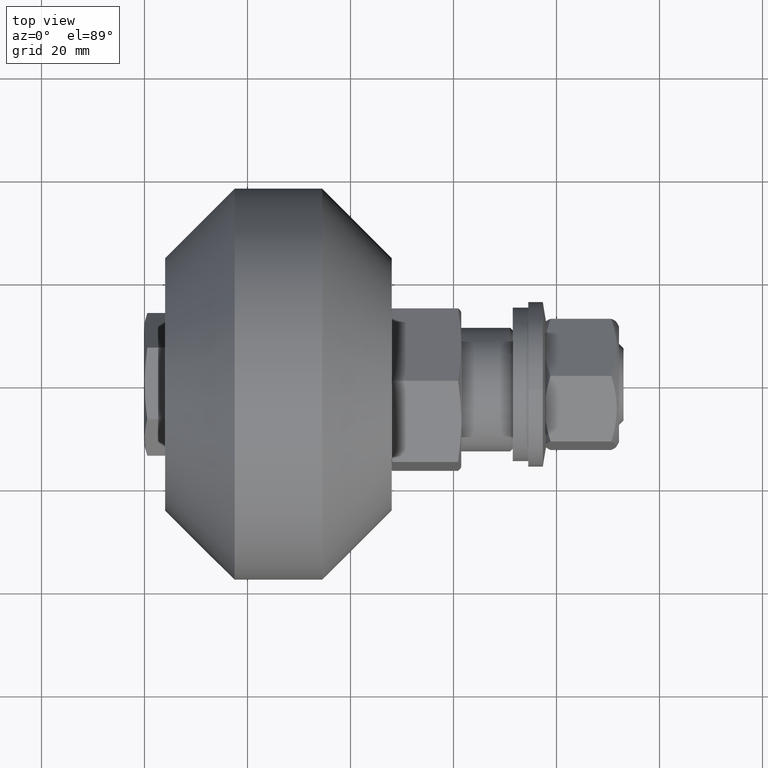
[diagram: clean part render]
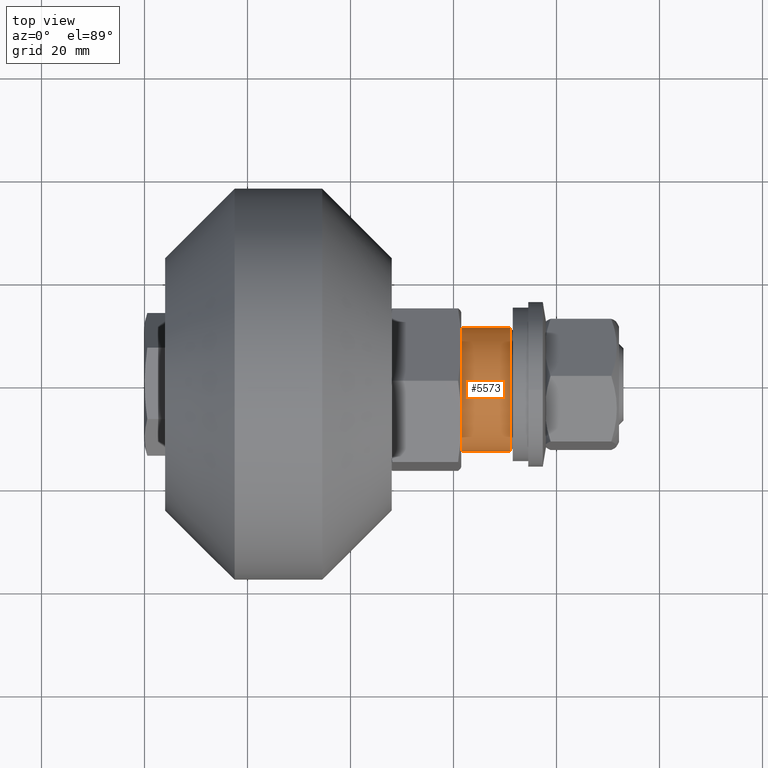
[diagram: same view with one face highlighted and labeled with its STEP entity id]
A machine part, top view. The second image highlights one B-rep face of the part: STEP entity #5573.
In plain terms, the highlighted cylindrical surface (bore or boss wall) has radius 12 mm, axis along (1, 0, 0).
Its self-contained STEP definition (entity closure, byte-faithful):
#591=CYLINDRICAL_SURFACE('',#6329,12.);
#841=FACE_OUTER_BOUND('',#1154,.T.);
#1154=EDGE_LOOP('',(#4941,#4942,#4943,#4944,#4945));
#1523=LINE('',#9691,#1841);
#1841=VECTOR('',#7746,12.);
#2105=CIRCLE('',#6327,12.);
#2106=CIRCLE('',#6328,12.);
#2107=CIRCLE('',#6330,12.);
#2622=VERTEX_POINT('',#9684);
#2623=VERTEX_POINT('',#9686);
#2624=VERTEX_POINT('',#9690);
#3421=EDGE_CURVE('',#2622,#2623,#2105,.T.);
#3422=EDGE_CURVE('',#2623,#2622,#2106,.T.);
#3423=EDGE_CURVE('',#2623,#2624,#1523,.T.);
#3424=EDGE_CURVE('',#2624,#2624,#2107,.T.);
#4941=ORIENTED_EDGE('',*,*,#3421,.F.);
#4942=ORIENTED_EDGE('',*,*,#3422,.F.);
#4943=ORIENTED_EDGE('',*,*,#3423,.T.);
#4944=ORIENTED_EDGE('',*,*,#3424,.T.);
#4945=ORIENTED_EDGE('',*,*,#3423,.F.);
#5573=ADVANCED_FACE('',(#841),#591,.T.);
#6327=AXIS2_PLACEMENT_3D('',#9687,#7740,#7741);
#6328=AXIS2_PLACEMENT_3D('',#9688,#7742,#7743);
#6329=AXIS2_PLACEMENT_3D('',#9689,#7744,#7745);
#6330=AXIS2_PLACEMENT_3D('',#9692,#7747,#7748);
#7740=DIRECTION('center_axis',(1.,0.,0.));
#7741=DIRECTION('ref_axis',(0.,-1.,0.));
#7742=DIRECTION('center_axis',(1.,0.,0.));
#7743=DIRECTION('ref_axis',(0.,-1.,0.));
#7744=DIRECTION('center_axis',(1.,0.,0.));
#7745=DIRECTION('ref_axis',(0.,1.,0.));
#7746=DIRECTION('',(-1.,0.,0.));
#7747=DIRECTION('center_axis',(1.,0.,0.));
#7748=DIRECTION('ref_axis',(0.,1.,0.));
#9684=CARTESIAN_POINT('',(25.,12.,1.46957615897682E-15));
#9686=CARTESIAN_POINT('',(25.,-12.,-1.46957615897682E-15));
#9687=CARTESIAN_POINT('Origin',(25.,0.,0.));
#9688=CARTESIAN_POINT('Origin',(25.,0.,0.));
#9689=CARTESIAN_POINT('Origin',(20.5,0.,0.));
#9690=CARTESIAN_POINT('',(15.5,-12.,-1.46957615897682E-15));
#9691=CARTESIAN_POINT('',(20.5,-12.,-1.46957615897682E-15));
#9692=CARTESIAN_POINT('Origin',(15.5,0.,0.));